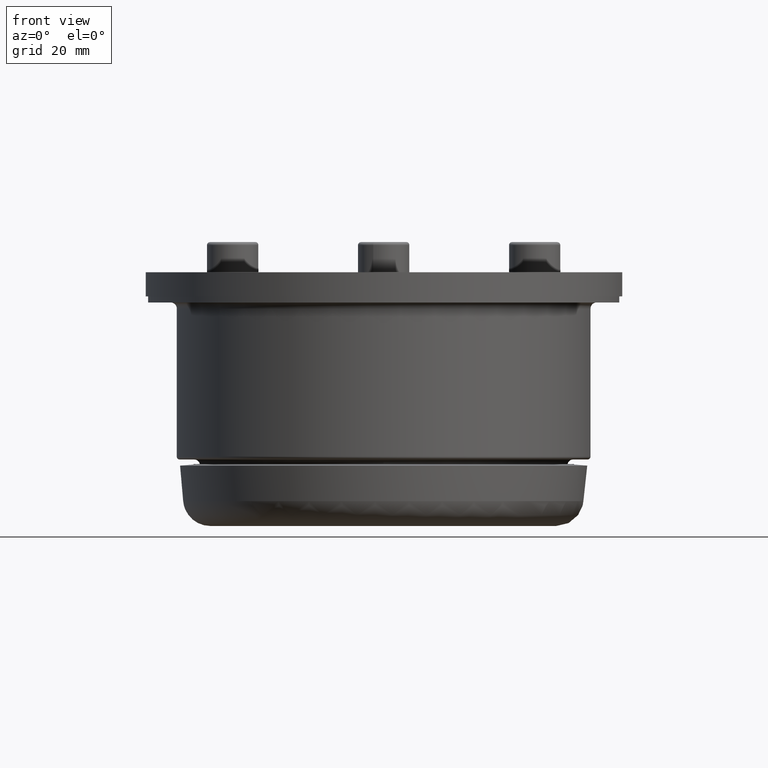
[diagram: clean part render]
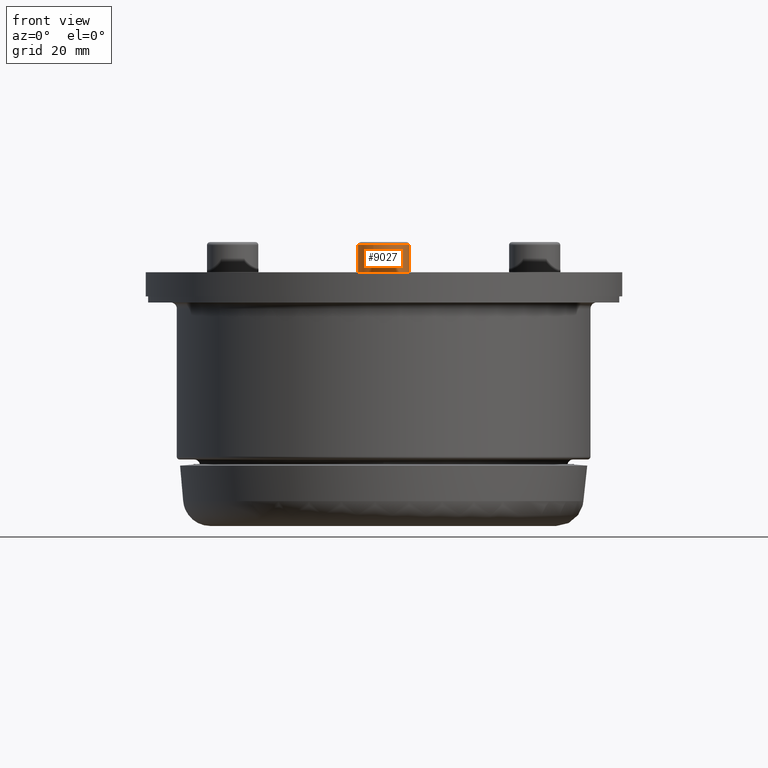
[diagram: same view with one face highlighted and labeled with its STEP entity id]
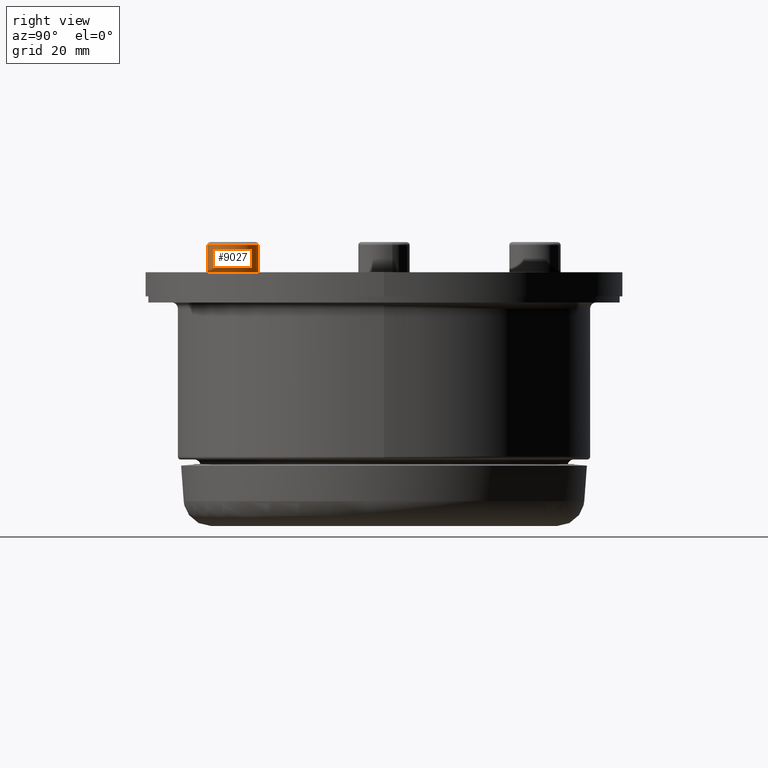
[diagram: same view with one face highlighted and labeled with its STEP entity id]
A machine part, front view. The second image highlights one B-rep face of the part: STEP entity #9027.
A second angle (right view) of the same face is appended — the face is thin or edge-on in the first view.
In plain terms, the highlighted cylindrical surface (bore or boss wall) has radius 4.25 mm, axis along (-0, -0, -1).
Its self-contained STEP definition (entity closure, byte-faithful):
#8885=CARTESIAN_POINT('',(2.220446E-015,4.250000000000003,0.0));
#8886=VERTEX_POINT('',#8885);
#8887=CARTESIAN_POINT('',(0.0,-1.170583E-016,0.0));
#8888=DIRECTION('',(1.0,0.0,0.0));
#8889=DIRECTION('',(0.0,1.0,0.0));
#8890=AXIS2_PLACEMENT_3D('',#8887,#8888,#8889);
#8891=CIRCLE('',#8890,4.250000000000003);
#8892=EDGE_CURVE('',#8886,#8886,#8891,.T.);
#8945=CARTESIAN_POINT('',(-4.499999999999996,4.250000000000002,-1.040950E-015));
#8946=VERTEX_POINT('',#8945);
#8947=CARTESIAN_POINT('',(-4.499999999999996,-1.302274E-016,0.0));
#8948=DIRECTION('',(-1.0,0.0,0.0));
#8949=DIRECTION('',(0.0,-1.0,0.0));
#8950=AXIS2_PLACEMENT_3D('',#8947,#8948,#8949);
#8951=CIRCLE('',#8950,4.250000000000002);
#8952=EDGE_CURVE('',#8946,#8946,#8951,.T.);
#9016=CARTESIAN_POINT('',(-2.5,-1.243744E-016,0.0));
#9017=DIRECTION('',(1.0,2.926457E-018,0.0));
#9018=DIRECTION('',(0.0,1.0,0.0));
#9019=AXIS2_PLACEMENT_3D('',#9016,#9017,#9018);
#9020=CYLINDRICAL_SURFACE('',#9019,4.250000000000002);
#9021=ORIENTED_EDGE('',*,*,#8892,.F.);
#9022=EDGE_LOOP('',(#9021));
#9023=FACE_OUTER_BOUND('',#9022,.T.);
#9024=ORIENTED_EDGE('',*,*,#8952,.F.);
#9025=EDGE_LOOP('',(#9024));
#9026=FACE_BOUND('',#9025,.T.);
#9027=ADVANCED_FACE('',(#9023,#9026),#9020,.T.);